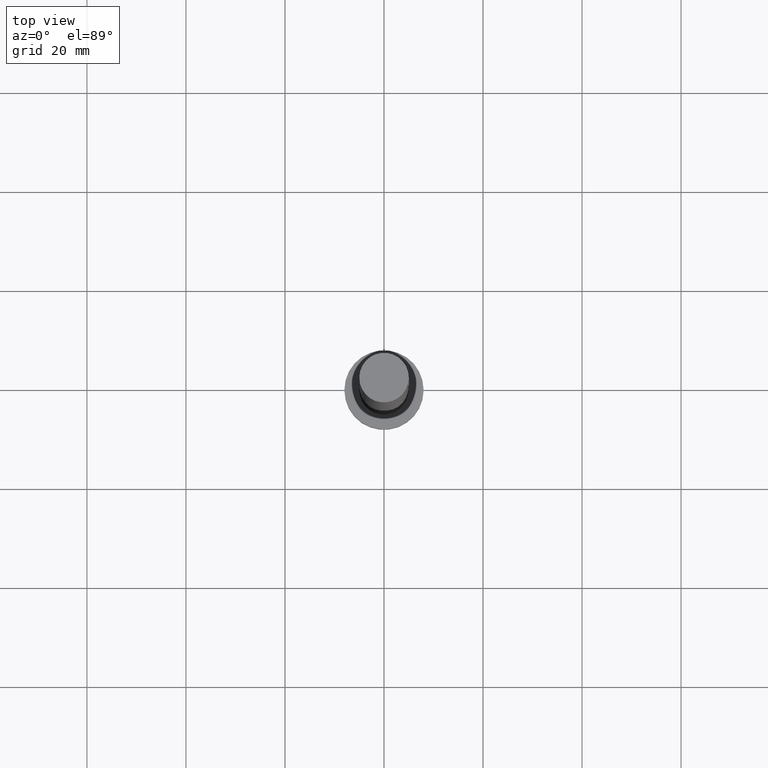
[diagram: clean part render]
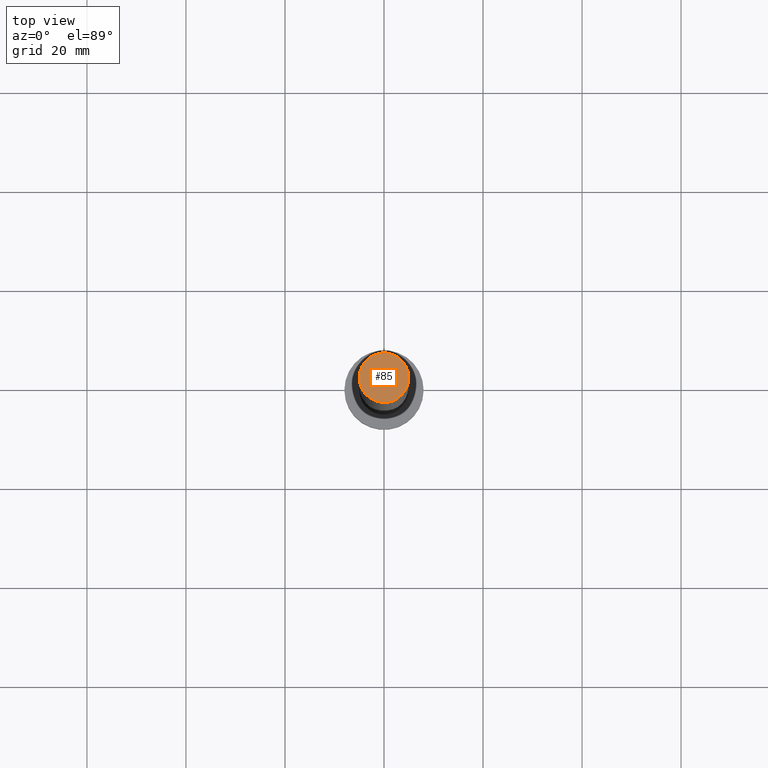
[diagram: same view with one face highlighted and labeled with its STEP entity id]
A machine part, top view. The second image highlights one B-rep face of the part: STEP entity #85.
In plain terms, the highlighted planar face has unit normal (0, 0, 1).
Its self-contained STEP definition (entity closure, byte-faithful):
#6 = CARTESIAN_POINT ( 'NONE',  ( -5.000000000000000888, 0.000000000000000000, 146.0000000000000000 ) ) ;
#13 = DIRECTION ( 'NONE',  ( 0.000000000000000000, 0.000000000000000000, 1.000000000000000000 ) ) ;
#19 = AXIS2_PLACEMENT_3D ( 'NONE', #142, #181, #221 ) ;
#26 = EDGE_LOOP ( 'NONE', ( #71, #120 ) ) ;
#34 = DIRECTION ( 'NONE',  ( 0.000000000000000000, 0.000000000000000000, 1.000000000000000000 ) ) ;
#48 = FACE_OUTER_BOUND ( 'NONE', #26, .T. ) ;
#52 = AXIS2_PLACEMENT_3D ( 'NONE', #69, #34, #186 ) ;
#69 = CARTESIAN_POINT ( 'NONE',  ( 0.000000000000000000, 0.000000000000000000, 146.0000000000000000 ) ) ;
#71 = ORIENTED_EDGE ( 'NONE', *, *, #119, .T. ) ;
#82 = VERTEX_POINT ( 'NONE', #6 ) ;
#85 = ADVANCED_FACE ( 'NONE', ( #48 ), #143, .T. ) ;
#112 = AXIS2_PLACEMENT_3D ( 'NONE', #165, #13, #191 ) ;
#119 = EDGE_CURVE ( 'NONE', #82, #125, #239, .T. ) ;
#120 = ORIENTED_EDGE ( 'NONE', *, *, #139, .T. ) ;
#125 = VERTEX_POINT ( 'NONE', #253 ) ;
#139 = EDGE_CURVE ( 'NONE', #125, #82, #224, .T. ) ;
#142 = CARTESIAN_POINT ( 'NONE',  ( 0.000000000000000000, 0.000000000000000000, 146.0000000000000000 ) ) ;
#143 = PLANE ( 'NONE',  #19 ) ;
#165 = CARTESIAN_POINT ( 'NONE',  ( 0.000000000000000000, 0.000000000000000000, 146.0000000000000000 ) ) ;
#181 = DIRECTION ( 'NONE',  ( 0.000000000000000000, 0.000000000000000000, 1.000000000000000000 ) ) ;
#186 = DIRECTION ( 'NONE',  ( 1.000000000000000000, 0.000000000000000000, 0.000000000000000000 ) ) ;
#191 = DIRECTION ( 'NONE',  ( 1.000000000000000000, 0.000000000000000000, 0.000000000000000000 ) ) ;
#221 = DIRECTION ( 'NONE',  ( 1.000000000000000000, 0.000000000000000000, -0.000000000000000000 ) ) ;
#224 = CIRCLE ( 'NONE', #112, 5.000000000000000888 ) ;
#239 = CIRCLE ( 'NONE', #52, 5.000000000000000888 ) ;
#253 = CARTESIAN_POINT ( 'NONE',  ( 5.000000000000000888, 6.123233995736767268E-16, 146.0000000000000000 ) ) ;